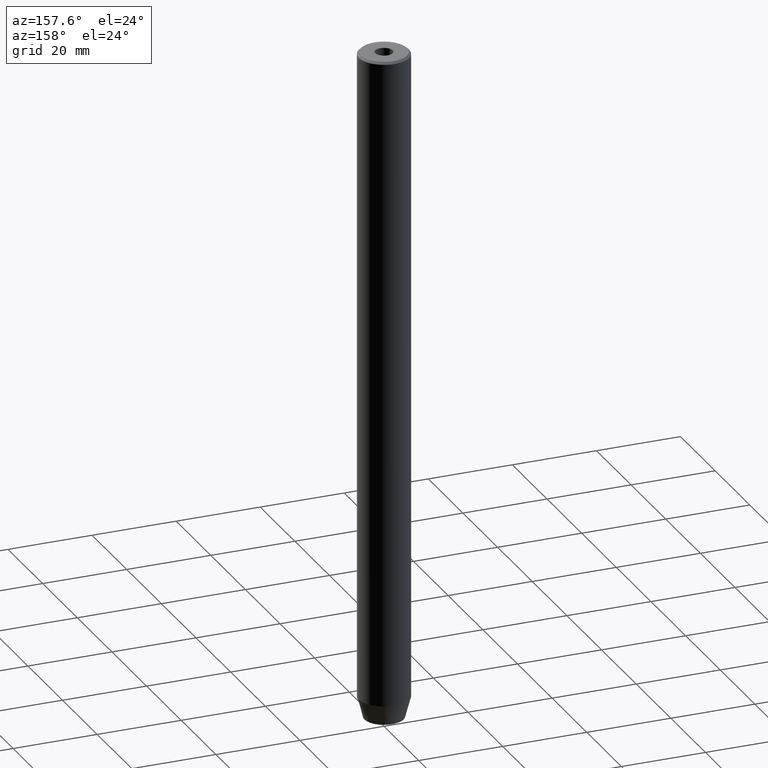
[diagram: clean part render]
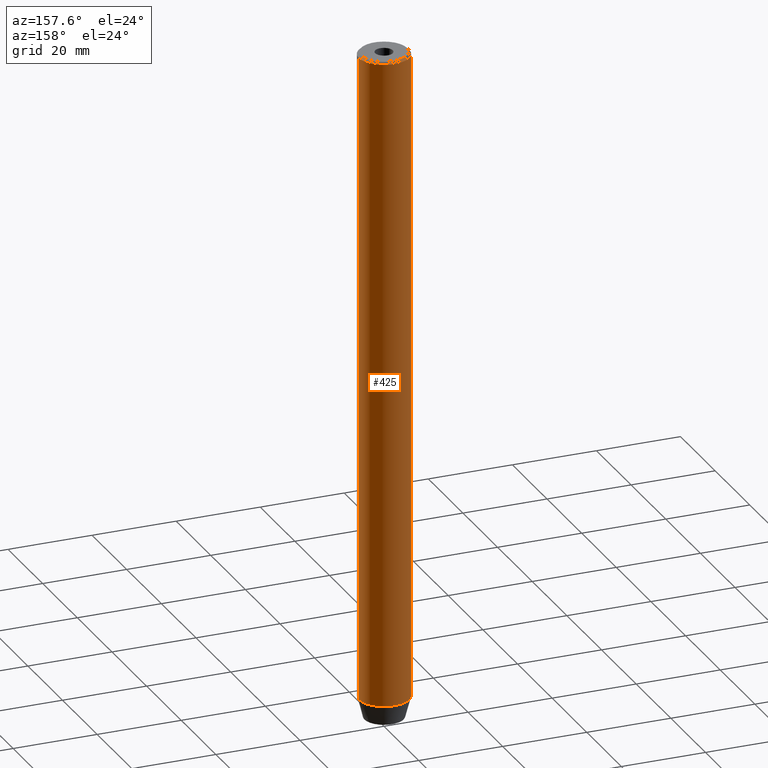
[diagram: same view with one face highlighted and labeled with its STEP entity id]
A machine part, auxiliary view. The second image highlights one B-rep face of the part: STEP entity #425.
In plain terms, the highlighted cylindrical surface (edge-blend (fillet) strip) has radius 6 mm, axis along (-0, -0, 1).
Its self-contained STEP definition (entity closure, byte-faithful):
#8 = VERTEX_POINT ( 'NONE', #580 ) ;
#10 = CARTESIAN_POINT ( 'NONE',  ( -6.000000000000000000, 7.347880794884119736E-16, -0.4999999999999891753 ) ) ;
#39 = ORIENTED_EDGE ( 'NONE', *, *, #111, .T. ) ;
#49 = VECTOR ( 'NONE', #455, 1000.000000000000000 ) ;
#63 = AXIS2_PLACEMENT_3D ( 'NONE', #84, #452, #578 ) ;
#66 = EDGE_CURVE ( 'NONE', #408, #446, #410, .T. ) ;
#84 = CARTESIAN_POINT ( 'NONE',  ( 0.000000000000000000, 0.000000000000000000, -154.9999999999999716 ) ) ;
#90 = DIRECTION ( 'NONE',  ( 0.000000000000000000, 0.000000000000000000, -1.000000000000000000 ) ) ;
#91 = VERTEX_POINT ( 'NONE', #135 ) ;
#111 = EDGE_CURVE ( 'NONE', #446, #91, #170, .T. ) ;
#116 = ORIENTED_EDGE ( 'NONE', *, *, #158, .F. ) ;
#135 = CARTESIAN_POINT ( 'NONE',  ( 6.000000000000000000, 0.000000000000000000, -0.4999999999999891753 ) ) ;
#158 = EDGE_CURVE ( 'NONE', #8, #91, #325, .T. ) ;
#170 = CIRCLE ( 'NONE', #324, 6.000000000000000000 ) ;
#179 = CARTESIAN_POINT ( 'NONE',  ( -6.000000000000000000, 7.347880794884119736E-16, -154.9999999999999716 ) ) ;
#222 = FACE_OUTER_BOUND ( 'NONE', #332, .T. ) ;
#289 = VECTOR ( 'NONE', #424, 1000.000000000000000 ) ;
#294 = AXIS2_PLACEMENT_3D ( 'NONE', #538, #312, #496 ) ;
#312 = DIRECTION ( 'NONE',  ( -0.000000000000000000, -0.000000000000000000, 1.000000000000000000 ) ) ;
#319 = DIRECTION ( 'NONE',  ( 1.000000000000000000, 0.000000000000000000, 0.000000000000000000 ) ) ;
#324 = AXIS2_PLACEMENT_3D ( 'NONE', #418, #90, #319 ) ;
#325 = LINE ( 'NONE', #335, #289 ) ;
#332 = EDGE_LOOP ( 'NONE', ( #532, #520, #39, #116 ) ) ;
#335 = CARTESIAN_POINT ( 'NONE',  ( 6.000000000000000000, 0.000000000000000000, 0.000000000000000000 ) ) ;
#350 = EDGE_CURVE ( 'NONE', #8, #408, #434, .T. ) ;
#364 = CYLINDRICAL_SURFACE ( 'NONE', #294, 6.000000000000000000 ) ;
#408 = VERTEX_POINT ( 'NONE', #179 ) ;
#410 = LINE ( 'NONE', #494, #49 ) ;
#418 = CARTESIAN_POINT ( 'NONE',  ( 0.000000000000000000, 0.000000000000000000, -0.4999999999999891753 ) ) ;
#424 = DIRECTION ( 'NONE',  ( -0.000000000000000000, -0.000000000000000000, 1.000000000000000000 ) ) ;
#425 = ADVANCED_FACE ( 'NONE', ( #222 ), #364, .T. ) ;
#434 = CIRCLE ( 'NONE', #63, 6.000000000000000000 ) ;
#446 = VERTEX_POINT ( 'NONE', #10 ) ;
#452 = DIRECTION ( 'NONE',  ( -0.000000000000000000, -0.000000000000000000, 1.000000000000000000 ) ) ;
#455 = DIRECTION ( 'NONE',  ( -0.000000000000000000, -0.000000000000000000, 1.000000000000000000 ) ) ;
#494 = CARTESIAN_POINT ( 'NONE',  ( -6.000000000000000000, 7.347880794884119736E-16, 0.000000000000000000 ) ) ;
#496 = DIRECTION ( 'NONE',  ( 1.000000000000000000, 0.000000000000000000, 0.000000000000000000 ) ) ;
#520 = ORIENTED_EDGE ( 'NONE', *, *, #66, .T. ) ;
#532 = ORIENTED_EDGE ( 'NONE', *, *, #350, .T. ) ;
#538 = CARTESIAN_POINT ( 'NONE',  ( 0.000000000000000000, 0.000000000000000000, 0.000000000000000000 ) ) ;
#578 = DIRECTION ( 'NONE',  ( 1.000000000000000000, 0.000000000000000000, 0.000000000000000000 ) ) ;
#580 = CARTESIAN_POINT ( 'NONE',  ( 6.000000000000000000, 0.000000000000000000, -154.9999999999999716 ) ) ;